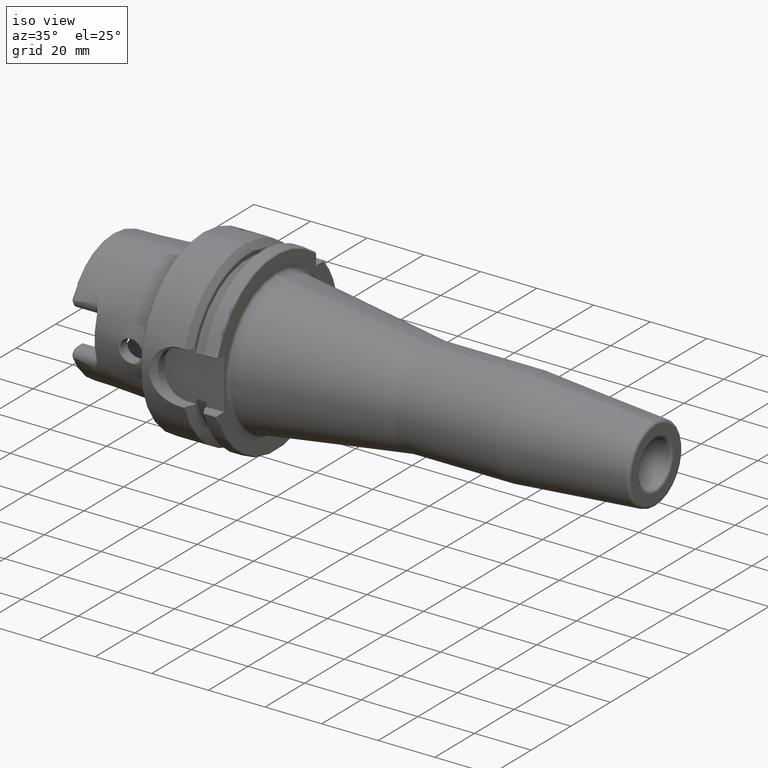
[diagram: clean part render]
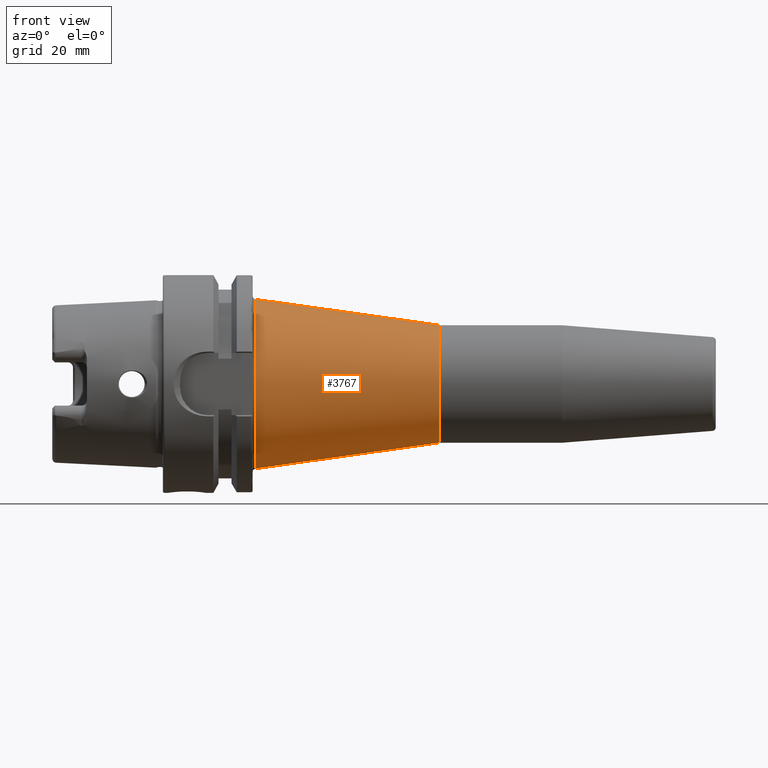
[diagram: tour spotlight — one face highlighted and labeled with its STEP entity id]
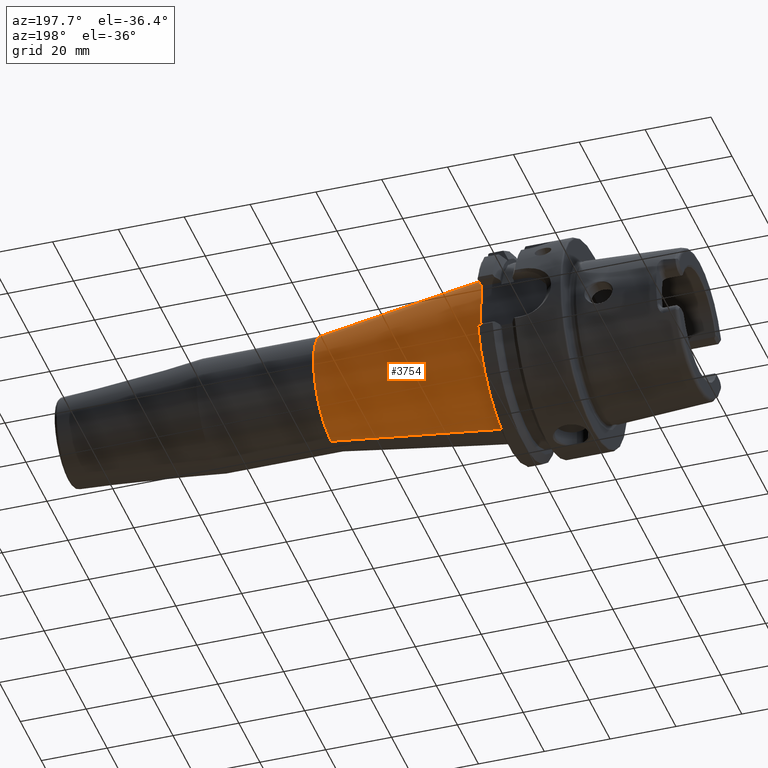
[diagram: tour spotlight — one face highlighted and labeled with its STEP entity id]
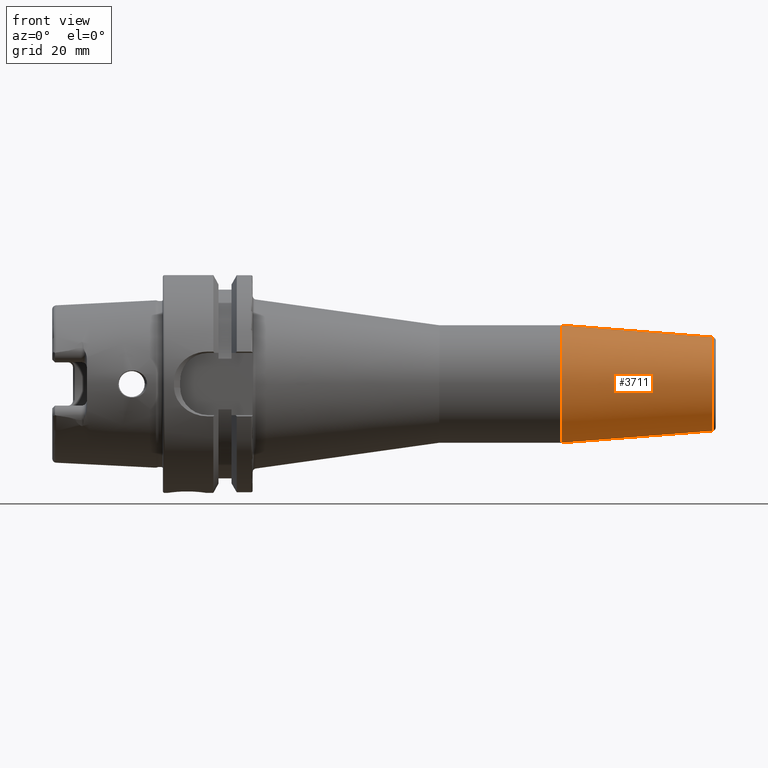
[diagram: tour spotlight — one face highlighted and labeled with its STEP entity id]
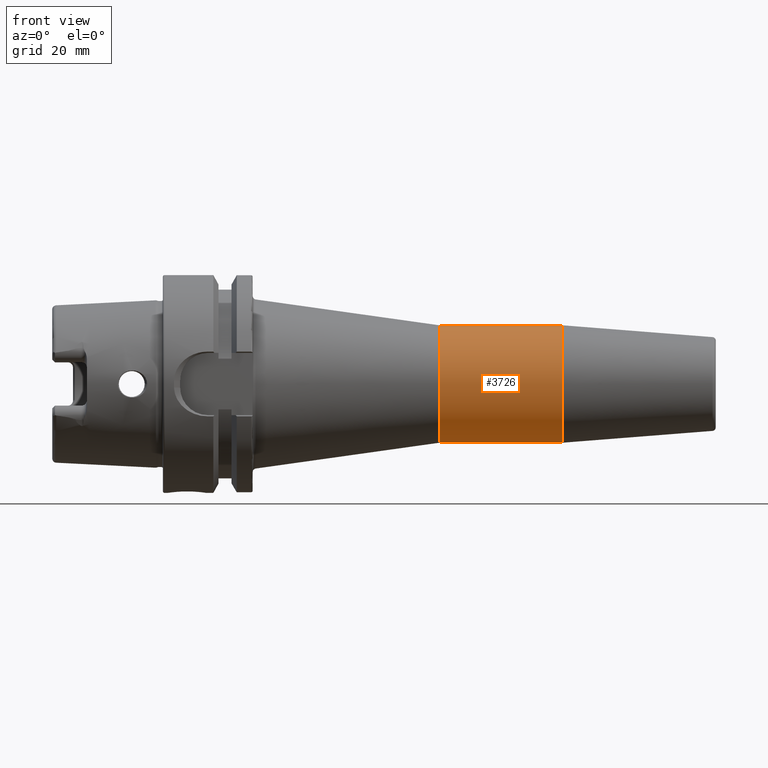
[diagram: tour spotlight — one face highlighted and labeled with its STEP entity id]
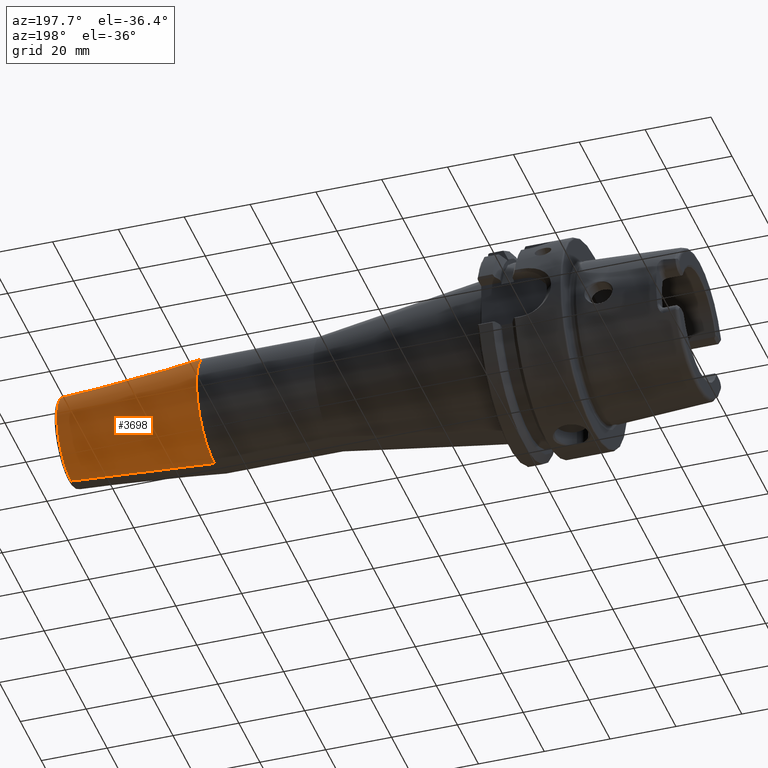
[diagram: tour spotlight — one face highlighted and labeled with its STEP entity id]
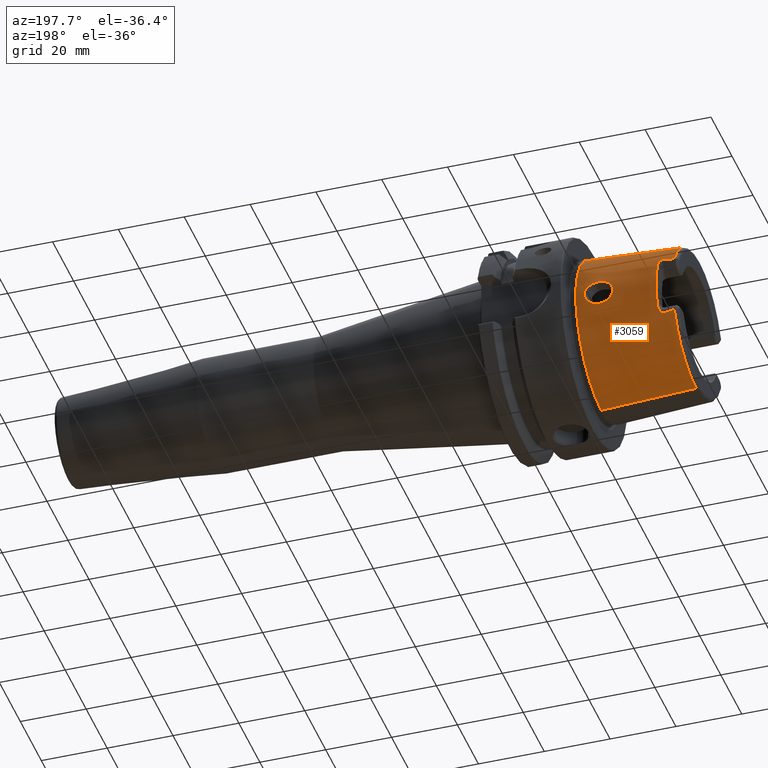
[diagram: tour spotlight — one face highlighted and labeled with its STEP entity id]
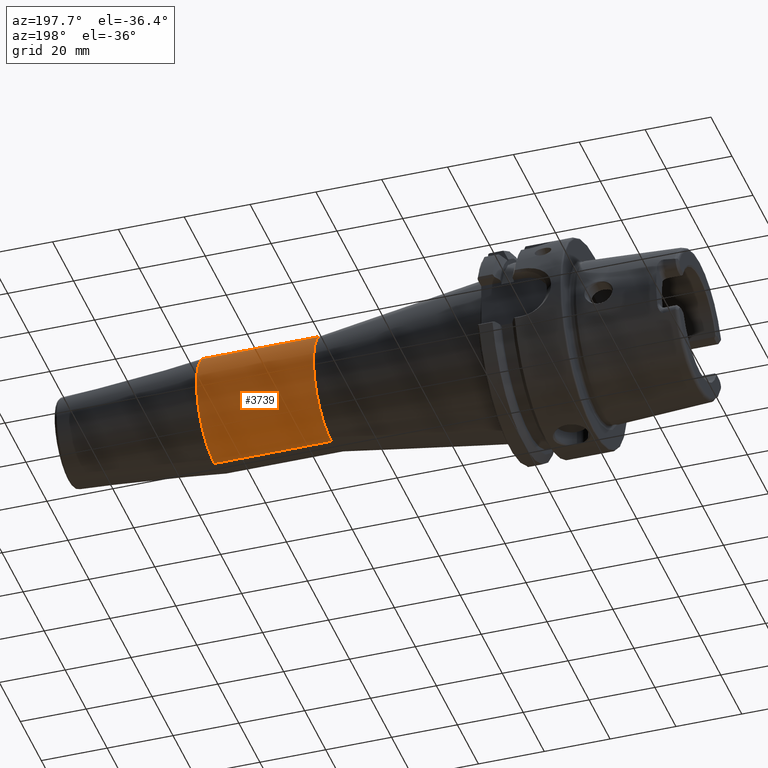
[diagram: tour spotlight — one face highlighted and labeled with its STEP entity id]
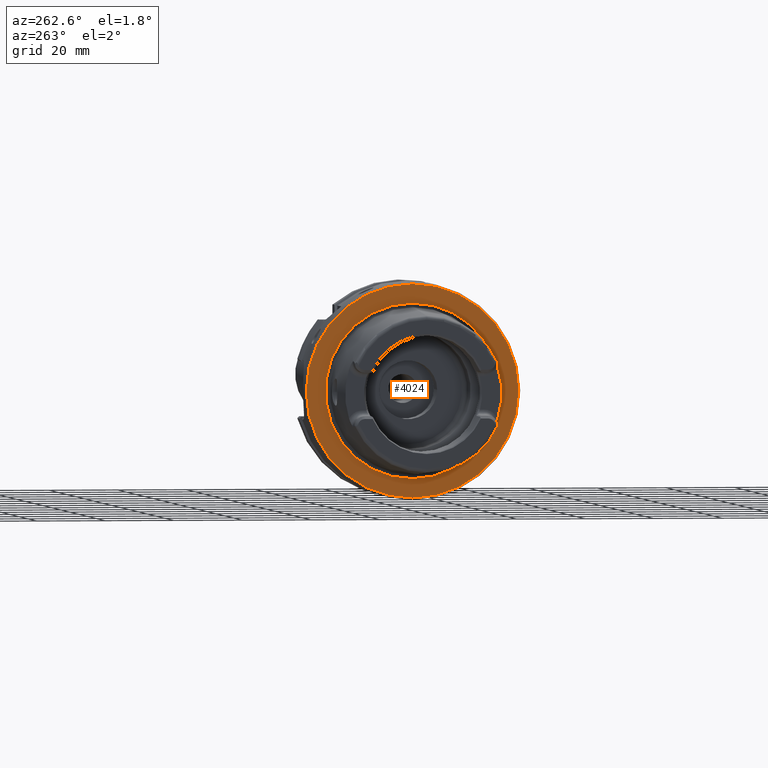
[diagram: tour spotlight — one face highlighted and labeled with its STEP entity id]
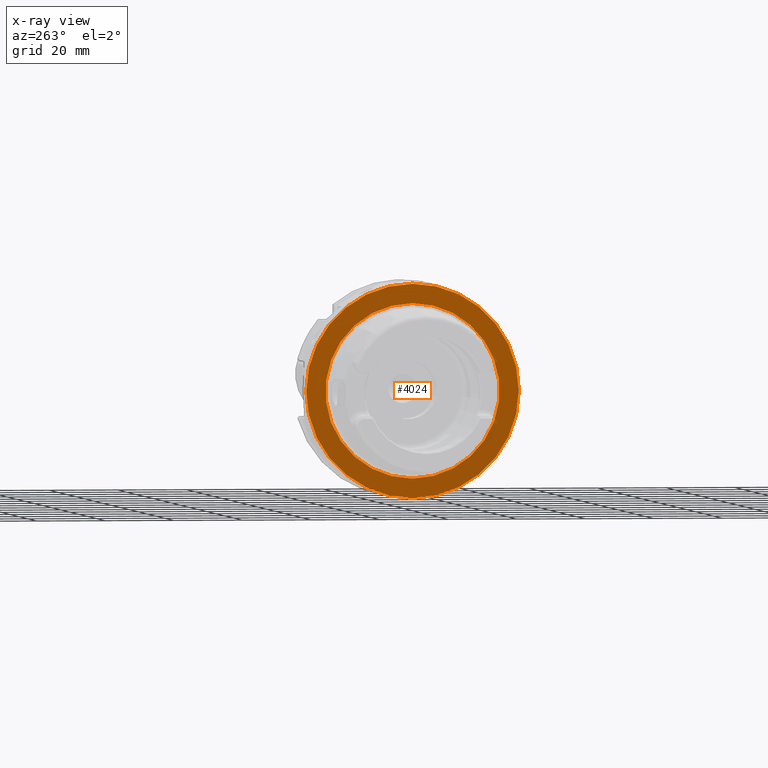
[diagram: x-ray of the same camera — body ghosted, this tour face saturated]
A machine part: a face-by-face anatomy tour. The part has 186 B-rep faces; the first image is the clean iso view, then the 8 largest visible faces are spotlighted one at a time (largest first), each with its STEP entity span.

Face 1 — front view, entity #3767. In plain terms, the highlighted conical surface has half-angle 8 deg.
Definition (entity closure, byte-faithful):
#630=DIRECTION('',(-9.902680687416E-1,0.E0,-1.391731009600E-1));
#631=VECTOR('',#630,5.366140217820E1);
#632=CARTESIAN_POINT('',(8.000000000001E1,0.E0,-1.7E1));
#633=LINE('',#632,#631);
#634=DIRECTION('',(-9.902680687416E-1,0.E0,1.391731009600E-1));
#635=VECTOR('',#634,5.366140217820E1);
#636=CARTESIAN_POINT('',(8.000000000001E1,0.E0,1.7E1));
#637=LINE('',#636,#635);
#638=CARTESIAN_POINT('',(8.000000000001E1,0.E0,0.E0));
#639=DIRECTION('',(-1.E0,0.E0,0.E0));
#640=DIRECTION('',(0.E0,0.E0,-1.E0));
#641=AXIS2_PLACEMENT_3D('',#638,#639,#640);
#648=CARTESIAN_POINT('',(2.686082689904E1,0.E0,0.E0));
#649=DIRECTION('',(-1.E0,0.E0,0.E0));
#650=DIRECTION('',(0.E0,0.E0,-1.E0));
#651=AXIS2_PLACEMENT_3D('',#648,#649,#650);
#2978=CARTESIAN_POINT('',(8.000000000001E1,0.E0,-1.7E1));
#2979=VERTEX_POINT('',#2978);
#2980=CARTESIAN_POINT('',(2.686082689904E1,0.E0,-2.446822374300E1));
#2981=VERTEX_POINT('',#2980);
#3002=CARTESIAN_POINT('',(8.000000000001E1,0.E0,1.7E1));
#3003=VERTEX_POINT('',#3002);
#3004=CARTESIAN_POINT('',(2.686082689904E1,0.E0,2.446822374300E1));
#3005=VERTEX_POINT('',#3004);
#3755=CARTESIAN_POINT('',(5.343041344953E1,0.E0,0.E0));
#3756=DIRECTION('',(-1.E0,0.E0,0.E0));
#3757=DIRECTION('',(0.E0,0.E0,-1.E0));
#3758=AXIS2_PLACEMENT_3D('',#3755,#3756,#3757);
#3759=CONICAL_SURFACE('',#3758,2.073411187150E1,7.999999999998E0);
#3760=ORIENTED_EDGE('',*,*,#3745,.T.);
#3762=ORIENTED_EDGE('',*,*,#3761,.T.);
#3763=ORIENTED_EDGE('',*,*,#3748,.F.);
#3764=ORIENTED_EDGE('',*,*,#3719,.F.);
#3765=EDGE_LOOP('',(#3760,#3762,#3763,#3764));
#3766=FACE_OUTER_BOUND('',#3765,.F.);
#3767=ADVANCED_FACE('',(#3766),#3759,.T.);
#642=CIRCLE('',#641,1.7E1);
#652=CIRCLE('',#651,2.446822374300E1);
#3719=EDGE_CURVE('',#2979,#3003,#642,.T.);
#3745=EDGE_CURVE('',#2979,#2981,#633,.T.);
#3748=EDGE_CURVE('',#3003,#3005,#637,.T.);
#3761=EDGE_CURVE('',#2981,#3005,#652,.T.);

Face 2 — auxiliary view, entity #3754. In plain terms, the highlighted conical surface has half-angle 8 deg.
Definition (entity closure, byte-faithful):
#625=CARTESIAN_POINT('',(8.000000000001E1,0.E0,0.E0));
#626=DIRECTION('',(1.E0,0.E0,0.E0));
#627=DIRECTION('',(0.E0,0.E0,-1.E0));
#628=AXIS2_PLACEMENT_3D('',#625,#626,#627);
#630=DIRECTION('',(-9.902680687416E-1,0.E0,-1.391731009600E-1));
#631=VECTOR('',#630,5.366140217820E1);
#632=CARTESIAN_POINT('',(8.000000000001E1,0.E0,-1.7E1));
#633=LINE('',#632,#631);
#634=DIRECTION('',(-9.902680687416E-1,0.E0,1.391731009600E-1));
#635=VECTOR('',#634,5.366140217820E1);
#636=CARTESIAN_POINT('',(8.000000000001E1,0.E0,1.7E1));
#637=LINE('',#636,#635);
#2501=CARTESIAN_POINT('',(2.686082689904E1,0.E0,0.E0));
#2502=DIRECTION('',(1.E0,0.E0,0.E0));
#2503=DIRECTION('',(0.E0,0.E0,-1.E0));
#2504=AXIS2_PLACEMENT_3D('',#2501,#2502,#2503);
#2978=CARTESIAN_POINT('',(8.000000000001E1,0.E0,-1.7E1));
#2979=VERTEX_POINT('',#2978);
#2980=CARTESIAN_POINT('',(2.686082689904E1,0.E0,-2.446822374300E1));
#2981=VERTEX_POINT('',#2980);
#3002=CARTESIAN_POINT('',(8.000000000001E1,0.E0,1.7E1));
#3003=VERTEX_POINT('',#3002);
#3004=CARTESIAN_POINT('',(2.686082689904E1,0.E0,2.446822374300E1));
#3005=VERTEX_POINT('',#3004);
#3740=CARTESIAN_POINT('',(5.343041344953E1,0.E0,0.E0));
#3741=DIRECTION('',(-1.E0,0.E0,0.E0));
#3742=DIRECTION('',(0.E0,0.E0,-1.E0));
#3743=AXIS2_PLACEMENT_3D('',#3740,#3741,#3742);
#3744=CONICAL_SURFACE('',#3743,2.073411187150E1,7.999999999998E0);
#3746=ORIENTED_EDGE('',*,*,#3745,.F.);
#3747=ORIENTED_EDGE('',*,*,#3735,.T.);
#3749=ORIENTED_EDGE('',*,*,#3748,.T.);
#3751=ORIENTED_EDGE('',*,*,#3750,.F.);
#3752=EDGE_LOOP('',(#3746,#3747,#3749,#3751));
#3753=FACE_OUTER_BOUND('',#3752,.F.);
#3754=ADVANCED_FACE('',(#3753),#3744,.T.);
#629=CIRCLE('',#628,1.7E1);
#2505=CIRCLE('',#2504,2.446822374300E1);
#3735=EDGE_CURVE('',#2979,#3003,#629,.T.);
#3745=EDGE_CURVE('',#2979,#2981,#633,.T.);
#3748=EDGE_CURVE('',#3003,#3005,#637,.T.);
#3750=EDGE_CURVE('',#2981,#3005,#2505,.T.);

Face 3 — front view, entity #3711. In plain terms, the highlighted conical surface has half-angle 4.5 deg.
Definition (entity closure, byte-faithful):
#594=DIRECTION('',(-9.969173337331E-1,0.E0,-7.845909572785E-2));
#595=VECTOR('',#594,4.368484145948E1);
#596=CARTESIAN_POINT('',(1.590784590957E2,0.E0,-1.357252684208E1));
#597=LINE('',#596,#595);
#598=DIRECTION('',(-9.969173337331E-1,0.E0,7.845909572785E-2));
#599=VECTOR('',#598,4.368484145948E1);
#600=CARTESIAN_POINT('',(1.590784590957E2,0.E0,1.357252684208E1));
#601=LINE('',#600,#599);
#602=CARTESIAN_POINT('',(1.590784590957E2,0.E0,0.E0));
#603=DIRECTION('',(-1.E0,0.E0,0.E0));
#604=DIRECTION('',(0.E0,0.E0,-1.E0));
#605=AXIS2_PLACEMENT_3D('',#602,#603,#604);
#615=CARTESIAN_POINT('',(1.155282834234E2,0.E0,0.E0));
#616=DIRECTION('',(-1.E0,0.E0,0.E0));
#617=DIRECTION('',(0.E0,0.E0,-1.E0));
#618=AXIS2_PLACEMENT_3D('',#615,#616,#617);
#2973=CARTESIAN_POINT('',(1.590784590957E2,0.E0,-1.357252684208E1));
#2975=VERTEX_POINT('',#2973);
#2976=CARTESIAN_POINT('',(1.155282834234E2,0.E0,-1.7E1));
#2977=VERTEX_POINT('',#2976);
#2997=CARTESIAN_POINT('',(1.590784590957E2,0.E0,1.357252684208E1));
#2999=VERTEX_POINT('',#2997);
#3000=CARTESIAN_POINT('',(1.155282834234E2,0.E0,1.7E1));
#3001=VERTEX_POINT('',#3000);
#3699=CARTESIAN_POINT('',(1.373033712596E2,0.E0,0.E0));
#3700=DIRECTION('',(-1.E0,0.E0,0.E0));
#3701=DIRECTION('',(0.E0,0.E0,-1.E0));
#3702=AXIS2_PLACEMENT_3D('',#3699,#3700,#3701);
#3703=CONICAL_SURFACE('',#3702,1.528626342104E1,4.5E0);
#3704=ORIENTED_EDGE('',*,*,#3689,.T.);
#3706=ORIENTED_EDGE('',*,*,#3705,.T.);
#3707=ORIENTED_EDGE('',*,*,#3692,.F.);
#3708=ORIENTED_EDGE('',*,*,#3663,.F.);
#3709=EDGE_LOOP('',(#3704,#3706,#3707,#3708));
#3710=FACE_OUTER_BOUND('',#3709,.F.);
#3711=ADVANCED_FACE('',(#3710),#3703,.T.);
#606=CIRCLE('',#605,1.357252684208E1);
#619=CIRCLE('',#618,1.7E1);
#3663=EDGE_CURVE('',#2975,#2999,#606,.T.);
#3689=EDGE_CURVE('',#2975,#2977,#597,.T.);
#3692=EDGE_CURVE('',#2999,#3001,#601,.T.);
#3705=EDGE_CURVE('',#2977,#3001,#619,.T.);

Face 4 — front view, entity #3726. In plain terms, the highlighted cylindrical surface (partial cylindrical patch) has radius 17 mm, axis along (1, 0, 0).
Definition (entity closure, byte-faithful):
#607=DIRECTION('',(-1.E0,0.E0,0.E0));
#608=VECTOR('',#607,3.552828342339E1);
#609=CARTESIAN_POINT('',(1.155282834234E2,0.E0,-1.7E1));
#610=LINE('',#609,#608);
#611=DIRECTION('',(-1.E0,0.E0,0.E0));
#612=VECTOR('',#611,3.552828342339E1);
#613=CARTESIAN_POINT('',(1.155282834234E2,0.E0,1.7E1));
#614=LINE('',#613,#612);
#615=CARTESIAN_POINT('',(1.155282834234E2,0.E0,0.E0));
#616=DIRECTION('',(-1.E0,0.E0,0.E0));
#617=DIRECTION('',(0.E0,0.E0,-1.E0));
#618=AXIS2_PLACEMENT_3D('',#615,#616,#617);
#638=CARTESIAN_POINT('',(8.000000000001E1,0.E0,0.E0));
#639=DIRECTION('',(-1.E0,0.E0,0.E0));
#640=DIRECTION('',(0.E0,0.E0,-1.E0));
#641=AXIS2_PLACEMENT_3D('',#638,#639,#640);
#2976=CARTESIAN_POINT('',(1.155282834234E2,0.E0,-1.7E1));
#2977=VERTEX_POINT('',#2976);
#2978=CARTESIAN_POINT('',(8.000000000001E1,0.E0,-1.7E1));
#2979=VERTEX_POINT('',#2978);
#3000=CARTESIAN_POINT('',(1.155282834234E2,0.E0,1.7E1));
#3001=VERTEX_POINT('',#3000);
#3002=CARTESIAN_POINT('',(8.000000000001E1,0.E0,1.7E1));
#3003=VERTEX_POINT('',#3002);
#3712=CARTESIAN_POINT('',(1.93E1,0.E0,0.E0));
#3713=DIRECTION('',(1.E0,0.E0,0.E0));
#3714=DIRECTION('',(0.E0,0.E0,1.E0));
#3715=AXIS2_PLACEMENT_3D('',#3712,#3713,#3714);
#3716=CYLINDRICAL_SURFACE('',#3715,1.7E1);
#3718=ORIENTED_EDGE('',*,*,#3717,.T.);
#3720=ORIENTED_EDGE('',*,*,#3719,.T.);
#3722=ORIENTED_EDGE('',*,*,#3721,.F.);
#3723=ORIENTED_EDGE('',*,*,#3705,.F.);
#3724=EDGE_LOOP('',(#3718,#3720,#3722,#3723));
#3725=FACE_OUTER_BOUND('',#3724,.F.);
#3726=ADVANCED_FACE('',(#3725),#3716,.T.);
#619=CIRCLE('',#618,1.7E1);
#642=CIRCLE('',#641,1.7E1);
#3705=EDGE_CURVE('',#2977,#3001,#619,.T.);
#3717=EDGE_CURVE('',#2977,#2979,#610,.T.);
#3719=EDGE_CURVE('',#2979,#3003,#642,.T.);
#3721=EDGE_CURVE('',#3001,#3003,#614,.T.);

Face 5 — auxiliary view, entity #3698. In plain terms, the highlighted conical surface has half-angle 4.5 deg.
Definition (entity closure, byte-faithful):
#589=CARTESIAN_POINT('',(1.590784590957E2,0.E0,0.E0));
#590=DIRECTION('',(1.E0,0.E0,0.E0));
#591=DIRECTION('',(0.E0,0.E0,-1.E0));
#592=AXIS2_PLACEMENT_3D('',#589,#590,#591);
#594=DIRECTION('',(-9.969173337331E-1,0.E0,-7.845909572785E-2));
#595=VECTOR('',#594,4.368484145948E1);
#596=CARTESIAN_POINT('',(1.590784590957E2,0.E0,-1.357252684208E1));
#597=LINE('',#596,#595);
#598=DIRECTION('',(-9.969173337331E-1,0.E0,7.845909572785E-2));
#599=VECTOR('',#598,4.368484145948E1);
#600=CARTESIAN_POINT('',(1.590784590957E2,0.E0,1.357252684208E1));
#601=LINE('',#600,#599);
#620=CARTESIAN_POINT('',(1.155282834234E2,0.E0,0.E0));
#621=DIRECTION('',(1.E0,0.E0,0.E0));
#622=DIRECTION('',(0.E0,0.E0,-1.E0));
#623=AXIS2_PLACEMENT_3D('',#620,#621,#622);
#2973=CARTESIAN_POINT('',(1.590784590957E2,0.E0,-1.357252684208E1));
#2975=VERTEX_POINT('',#2973);
#2976=CARTESIAN_POINT('',(1.155282834234E2,0.E0,-1.7E1));
#2977=VERTEX_POINT('',#2976);
#2997=CARTESIAN_POINT('',(1.590784590957E2,0.E0,1.357252684208E1));
#2999=VERTEX_POINT('',#2997);
#3000=CARTESIAN_POINT('',(1.155282834234E2,0.E0,1.7E1));
#3001=VERTEX_POINT('',#3000);
#3684=CARTESIAN_POINT('',(1.373033712596E2,0.E0,0.E0));
#3685=DIRECTION('',(-1.E0,0.E0,0.E0));
#3686=DIRECTION('',(0.E0,0.E0,-1.E0));
#3687=AXIS2_PLACEMENT_3D('',#3684,#3685,#3686);
#3688=CONICAL_SURFACE('',#3687,1.528626342104E1,4.5E0);
#3690=ORIENTED_EDGE('',*,*,#3689,.F.);
#3691=ORIENTED_EDGE('',*,*,#3679,.T.);
#3693=ORIENTED_EDGE('',*,*,#3692,.T.);
#3695=ORIENTED_EDGE('',*,*,#3694,.F.);
#3696=EDGE_LOOP('',(#3690,#3691,#3693,#3695));
#3697=FACE_OUTER_BOUND('',#3696,.F.);
#3698=ADVANCED_FACE('',(#3697),#3688,.T.);
#593=CIRCLE('',#592,1.357252684208E1);
#624=CIRCLE('',#623,1.7E1);
#3679=EDGE_CURVE('',#2975,#2999,#593,.T.);
#3689=EDGE_CURVE('',#2975,#2977,#597,.T.);
#3692=EDGE_CURVE('',#2999,#3001,#601,.T.);
#3694=EDGE_CURVE('',#2977,#3001,#624,.T.);

Face 6 — auxiliary view, entity #3059. In plain terms, the highlighted conical surface has half-angle 2.868 deg.
Definition (entity closure, byte-faithful):
#2=CARTESIAN_POINT('',(-3.086004333271E1,0.E0,0.E0));
#3=DIRECTION('',(-1.E0,0.E0,0.E0));
#4=DIRECTION('',(0.E0,9.163649919573E-1,-4.003438540993E-1));
#5=AXIS2_PLACEMENT_3D('',#2,#3,#4);
#7=CARTESIAN_POINT('',(-2.000078966146E0,0.E0,0.E0));
#8=DIRECTION('',(-1.E0,0.E0,0.E0));
#9=DIRECTION('',(0.E0,0.E0,1.E0));
#10=AXIS2_PLACEMENT_3D('',#7,#8,#9);
#12=CARTESIAN_POINT('',(-3.086004333271E1,0.E0,0.E0));
#13=DIRECTION('',(-1.E0,0.E0,0.E0));
#14=DIRECTION('',(0.E0,0.E0,1.E0));
#15=AXIS2_PLACEMENT_3D('',#12,#13,#14);
#17=CARTESIAN_POINT('',(-3.086004333271E1,2.086981840766E1,9.117659021249E0));
#18=CARTESIAN_POINT('',(-3.053477016229E1,2.087026407252E1,9.157343468693E0));
#19=CARTESIAN_POINT('',(-2.990731725920E1,2.086951854295E1,9.237138009720E0));
#20=CARTESIAN_POINT('',(-2.903749175968E1,2.086333964170E1,9.358087934639E0));
#21=CARTESIAN_POINT('',(-2.823306039663E1,2.085177035668E1,9.481640423811E0));
#22=CARTESIAN_POINT('',(-2.773735868303E1,2.083999307163E1,9.567019157167E0));
#23=CARTESIAN_POINT('',(-2.75E1,2.083289994314E1,9.610781850025E0));
#25=CARTESIAN_POINT('',(-3.086004333271E1,2.086981840766E1,-9.117659021249E0));
#26=CARTESIAN_POINT('',(-3.053477016229E1,2.087026407252E1,-9.157343468693E0));
#27=CARTESIAN_POINT('',(-2.990731725920E1,2.086951854295E1,-9.237138009720E0));
#28=CARTESIAN_POINT('',(-2.903749175968E1,2.086333964170E1,-9.358087934639E0));
#29=CARTESIAN_POINT('',(-2.823306039663E1,2.085177035668E1,-9.481640423811E0));
#30=CARTESIAN_POINT('',(-2.773735868303E1,2.083999307163E1,-9.567019157167E0));
#31=CARTESIAN_POINT('',(-2.75E1,2.083289994314E1,-9.610781850025E0));
#33=CARTESIAN_POINT('',(-1.304439190524E1,2.366711362744E1,0.E0));
#34=CARTESIAN_POINT('',(-1.304439190524E1,2.366711362744E1,-2.692296203512E-1));
#35=CARTESIAN_POINT('',(-1.298596588633E1,2.366095548437E1,-7.915478808268E-1));
#36=CARTESIAN_POINT('',(-1.273593529021E1,2.363615494345E1,-1.538491121410E0));
#37=CARTESIAN_POINT('',(-1.234085581199E1,2.360161826823E1,-2.213541098239E0));
#38=CARTESIAN_POINT('',(-1.181419542757E1,2.356442533815E1,-2.805250832800E0));
#39=CARTESIAN_POINT('',(-1.117137997799E1,2.353291472613E1,-3.293080560877E0));
#40=CARTESIAN_POINT('',(-1.044411763446E1,2.351584278645E1,-3.653416998785E0));
#41=CARTESIAN_POINT('',(-9.665961713705E0,2.351947741575E1,-3.874611692795E0));
#42=CARTESIAN_POINT('',(-8.868249773196E0,2.354653765362E1,-3.954597009881E0));
#43=CARTESIAN_POINT('',(-8.066538054402E0,2.359739017255E1,-3.894486132971E0));
#44=CARTESIAN_POINT('',(-7.282895667530E0,2.366966238930E1,-3.694792672991E0));
#45=CARTESIAN_POINT('',(-6.526798753436E0,2.376050761714E1,-3.345491144455E0));
#46=CARTESIAN_POINT('',(-5.863814319433E0,2.385701628222E1,-2.868853306938E0));
#47=CARTESIAN_POINT('',(-5.312865344565E0,2.394874241525E1,-2.282242940895E0));
#48=CARTESIAN_POINT('',(-4.894562356430E0,2.402528280422E1,-1.608353345469E0));
#49=CARTESIAN_POINT('',(-4.618382192889E0,2.407904412959E1,-8.401112834544E-1));
#50=CARTESIAN_POINT('',(-4.550876813471E0,2.409262908457E1,-2.877835390342E-1));
#51=CARTESIAN_POINT('',(-4.550876813471E0,2.409262908457E1,0.E0));
#53=CARTESIAN_POINT('',(-4.550876813471E0,2.409262908457E1,0.E0));
#54=CARTESIAN_POINT('',(-4.550876813471E0,2.409262908457E1,2.859611557422E-1));
#55=CARTESIAN_POINT('',(-4.617596309412E0,2.407920413971E1,8.352613928778E-1));
#56=CARTESIAN_POINT('',(-4.890694973026E0,2.402602347294E1,1.599880277375E0));
#57=CARTESIAN_POINT('',(-5.306466792903E0,2.394987071124E1,2.273906799261E0));
#58=CARTESIAN_POINT('',(-5.856510230644E0,2.385815053501E1,2.862665496108E0));
#59=CARTESIAN_POINT('',(-6.521241332787E0,2.376122989035E1,3.342466827978E0));
#60=CARTESIAN_POINT('',(-7.278646414857E0,2.367010677752E1,3.693348295885E0));
#61=CARTESIAN_POINT('',(-8.062694821519E0,2.359768581097E1,3.893886174943E0));
#62=CARTESIAN_POINT('',(-8.864889034770E0,2.354669857096E1,3.954654604967E0));
#63=CARTESIAN_POINT('',(-9.662752662742E0,2.351953711749E1,3.875232791745E0));
#64=CARTESIAN_POINT('',(-1.044126794827E1,2.351581579089E1,3.654504198045E0));
#65=CARTESIAN_POINT('',(-1.116829063931E1,2.353280579750E1,3.294940241881E0));
#66=CARTESIAN_POINT('',(-1.181105545196E1,2.356423840462E1,2.808070161338E0));
#67=CARTESIAN_POINT('',(-1.233792159236E1,2.360138355943E1,2.217544614980E0));
#68=CARTESIAN_POINT('',(-1.273424784845E1,2.363599247778E1,1.542402709130E0));
#69=CARTESIAN_POINT('',(-1.298554429292E1,2.366091077517E1,7.941137450600E-1));
#70=CARTESIAN_POINT('',(-1.304439190524E1,2.366711362744E1,2.702086010916E-1));
#71=CARTESIAN_POINT('',(-1.304439190524E1,2.366711362744E1,0.E0));
#144=CARTESIAN_POINT('',(-2.75E1,2.083289994314E1,-9.610781850025E0));
#145=CARTESIAN_POINT('',(-2.743975062531E1,2.083109947580E1,-9.621890248698E0));
#146=CARTESIAN_POINT('',(-2.731974848713E1,2.083872619074E1,-9.619737940193E0));
#147=CARTESIAN_POINT('',(-2.713788283439E1,2.088499706769E1,-9.541042090458E0));
#148=CARTESIAN_POINT('',(-2.696734572208E1,2.095414112914E1,-9.409321527965E0));
#149=CARTESIAN_POINT('',(-2.680749153758E1,2.103583876480E1,-9.245355378728E0));
#150=CARTESIAN_POINT('',(-2.665257735252E1,2.112843537783E1,-9.051716021862E0));
#151=CARTESIAN_POINT('',(-2.650302698832E1,2.123047210424E1,-8.829512386182E0));
#152=CARTESIAN_POINT('',(-2.636248241751E1,2.133984318010E1,-8.581008391494E0));
#153=CARTESIAN_POINT('',(-2.623108108915E1,2.145913591165E1,-8.296954135832E0));
#154=CARTESIAN_POINT('',(-2.611489180659E1,2.158976731555E1,-7.968405102356E0));
#155=CARTESIAN_POINT('',(-2.602652288189E1,2.173158022596E1,-7.587530024420E0));
#156=CARTESIAN_POINT('',(-2.6E1,2.183164499938E1,-7.296342131266E0));
#157=CARTESIAN_POINT('',(-2.6E1,2.188224159781E1,-7.141305064401E0));
#173=CARTESIAN_POINT('',(-2.6E1,0.E0,0.E0));
#174=DIRECTION('',(1.E0,0.E0,0.E0));
#175=DIRECTION('',(0.E0,9.506556522061E-1,-3.102480151887E-1));
#176=AXIS2_PLACEMENT_3D('',#173,#174,#175);
#1177=DIRECTION('',(-9.987474310439E-1,-1.043943059125E-10,-5.003567710383E-2));
#1178=VECTOR('',#1177,2.889623723507E1);
#1179=CARTESIAN_POINT('',(-2.000000627352E0,3.013169918385E-9,
2.422041252602E1));
#1180=LINE('',#1179,#1178);
#1186=DIRECTION('',(-9.987474310439E-1,1.043954859780E-10,5.003567710383E-2));
#1187=VECTOR('',#1186,2.889623723507E1);
#1188=CARTESIAN_POINT('',(-2.000000627352E0,-3.013171862045E-9,
-2.422041252602E1));
#1189=LINE('',#1188,#1187);
#1345=CARTESIAN_POINT('',(-2.6E1,2.188224159781E1,7.141305064400E0));
#1346=CARTESIAN_POINT('',(-2.6E1,2.183974716074E1,7.271515653360E0));
#1347=CARTESIAN_POINT('',(-2.601871282871E1,2.175468164903E1,7.521324142367E0));
#1348=CARTESIAN_POINT('',(-2.608831272694E1,2.162788937119E1,7.867819964950E0));
#1349=CARTESIAN_POINT('',(-2.618560132166E1,2.150728532315E1,8.177555427085E0));
#1350=CARTESIAN_POINT('',(-2.630091098865E1,2.139363544444E1,8.454351951900E0));
#1351=CARTESIAN_POINT('',(-2.642777532615E1,2.128749113051E1,8.701079139516E0));
#1352=CARTESIAN_POINT('',(-2.656205230822E1,2.118893349758E1,8.920855574258E0));
#1353=CARTESIAN_POINT('',(-2.670233126283E1,2.109762227452E1,9.116811046229E0));
#1354=CARTESIAN_POINT('',(-2.684756686438E1,2.101419232942E1,9.289367907590E0));
#1355=CARTESIAN_POINT('',(-2.700261207520E1,2.093857757737E1,9.439508455813E0));
#1356=CARTESIAN_POINT('',(-2.716024259459E1,2.087834082786E1,9.552833408787E0));
#1357=CARTESIAN_POINT('',(-2.733041362146E1,2.083774391445E1,9.620584457154E0));
#1358=CARTESIAN_POINT('',(-2.744319606554E1,2.083120243791E1,9.621255000217E0));
#1359=CARTESIAN_POINT('',(-2.75E1,2.083289994314E1,9.610781850025E0));
#2599=CARTESIAN_POINT('',(-2.000078966146E0,0.E0,-2.422042115892E1));
#2600=CARTESIAN_POINT('',(-2.000078966146E0,0.E0,2.422042115892E1));
#2601=VERTEX_POINT('',#2599);
#2602=VERTEX_POINT('',#2600);
#2744=CARTESIAN_POINT('',(-2.6E1,2.188224159781E1,-7.141305064400E0));
#2746=VERTEX_POINT('',#2744);
#2748=CARTESIAN_POINT('',(-2.75E1,2.083289994314E1,-9.610781850025E0));
#2750=VERTEX_POINT('',#2748);
#2752=CARTESIAN_POINT('',(-2.75E1,2.083289994314E1,9.610781850025E0));
#2754=VERTEX_POINT('',#2752);
#2756=CARTESIAN_POINT('',(-2.6E1,2.188224159781E1,7.141305064400E0));
#2758=VERTEX_POINT('',#2756);
#2774=CARTESIAN_POINT('',(-3.086004333271E1,0.E0,-2.277456973022E1));
#2776=VERTEX_POINT('',#2774);
#2778=CARTESIAN_POINT('',(-3.086004333271E1,2.086981840766E1,
-9.117659021249E0));
#2779=VERTEX_POINT('',#2778);
#2780=CARTESIAN_POINT('',(-3.086004333271E1,0.E0,2.277456973022E1));
#2781=CARTESIAN_POINT('',(-3.086004333271E1,2.086981840766E1,9.117659021249E0));
#2782=VERTEX_POINT('',#2780);
#2783=VERTEX_POINT('',#2781);
#2862=VERTEX_POINT('',#33);
#2863=VERTEX_POINT('',#51);
#3026=CARTESIAN_POINT('',(-1.643002229390E1,0.E0,0.E0));
#3027=DIRECTION('',(1.E0,0.E0,0.E0));
#3028=DIRECTION('',(0.E0,0.E0,1.E0));
#3029=AXIS2_PLACEMENT_3D('',#3026,#3027,#3028);
#3030=CONICAL_SURFACE('',#3029,2.349749739118E1,2.86805556E0);
#3032=ORIENTED_EDGE('',*,*,#3031,.T.);
#3034=ORIENTED_EDGE('',*,*,#3033,.F.);
#3036=ORIENTED_EDGE('',*,*,#3035,.F.);
#3038=ORIENTED_EDGE('',*,*,#3037,.T.);
#3040=ORIENTED_EDGE('',*,*,#3039,.T.);
#3042=ORIENTED_EDGE('',*,*,#3041,.T.);
#3044=ORIENTED_EDGE('',*,*,#3043,.F.);
#3046=ORIENTED_EDGE('',*,*,#3045,.F.);
#3048=ORIENTED_EDGE('',*,*,#3047,.F.);
#3050=ORIENTED_EDGE('',*,*,#3049,.F.);
#3051=EDGE_LOOP('',(#3032,#3034,#3036,#3038,#3040,#3042,#3044,#3046,#3048,
#3050));
#3052=FACE_OUTER_BOUND('',#3051,.F.);
#3054=ORIENTED_EDGE('',*,*,#3053,.F.);
#3056=ORIENTED_EDGE('',*,*,#3055,.F.);
#3057=EDGE_LOOP('',(#3054,#3056));
#3058=FACE_BOUND('',#3057,.F.);
#3059=ADVANCED_FACE('',(#3052,#3058),#3030,.T.);
#6=CIRCLE('',#5,2.277456973022E1);
#11=CIRCLE('',#10,2.422042115892E1);
#16=CIRCLE('',#15,2.277456973022E1);
#24=B_SPLINE_CURVE_WITH_KNOTS('',3,(#17,#18,#19,#20,#21,#22,#23),.UNSPECIFIED.,
.F.,.F.,(4,1,1,1,4),(0.E0,2.5E-1,5.E-1,7.5E-1,1.E0),.UNSPECIFIED.);
#32=B_SPLINE_CURVE_WITH_KNOTS('',3,(#25,#26,#27,#28,#29,#30,#31),.UNSPECIFIED.,
.F.,.F.,(4,1,1,1,4),(0.E0,2.5E-1,5.E-1,7.5E-1,1.E0),.UNSPECIFIED.);
#52=B_SPLINE_CURVE_WITH_KNOTS('',3,(#33,#34,#35,#36,#37,#38,#39,#40,#41,#42,#43,
#44,#45,#46,#47,#48,#49,#50,#51),.UNSPECIFIED.,.F.,.F.,(4,1,1,1,1,1,1,1,1,1,1,1,
1,1,1,1,4),(0.E0,6.25E-2,1.25E-1,1.875E-1,2.5E-1,3.125E-1,3.75E-1,4.375E-1,
5.E-1,5.625E-1,6.25E-1,6.875E-1,7.5E-1,8.125E-1,8.75E-1,9.375E-1,1.E0),
.UNSPECIFIED.);
#72=B_SPLINE_CURVE_WITH_KNOTS('',3,(#53,#54,#55,#56,#57,#58,#59,#60,#61,#62,#63,
#64,#65,#66,#67,#68,#69,#70,#71),.UNSPECIFIED.,.F.,.F.,(4,1,1,1,1,1,1,1,1,1,1,1,
1,1,1,1,4),(0.E0,6.25E-2,1.25E-1,1.875E-1,2.5E-1,3.125E-1,3.75E-1,4.375E-1,
5.E-1,5.625E-1,6.25E-1,6.875E-1,7.5E-1,8.125E-1,8.75E-1,9.375E-1,1.E0),
.UNSPECIFIED.);
#158=B_SPLINE_CURVE_WITH_KNOTS('',3,(#144,#145,#146,#147,#148,#149,#150,#151,
#152,#153,#154,#155,#156,#157),.UNSPECIFIED.,.F.,.F.,(4,1,1,1,1,1,1,1,1,1,1,4),(
0.E0,9.090909090909E-2,1.818181818182E-1,2.727272727273E-1,3.636363636364E-1,
4.545454545455E-1,5.454545454545E-1,6.363636363636E-1,7.272727272727E-1,
8.181818181818E-1,9.090909090909E-1,1.E0),.UNSPECIFIED.);
#177=CIRCLE('',#176,2.301805237998E1);
#1360=B_SPLINE_CURVE_WITH_KNOTS('',3,(#1345,#1346,#1347,#1348,#1349,#1350,#1351,
#1352,#1353,#1354,#1355,#1356,#1357,#1358,#1359),.UNSPECIFIED.,.F.,.F.,(4,1,1,1,
1,1,1,1,1,1,1,1,4),(0.E0,8.333333333333E-2,1.666666666667E-1,2.5E-1,
3.333333333333E-1,4.166666666667E-1,5.E-1,5.833333333333E-1,6.666666666667E-1,
7.5E-1,8.333333333333E-1,9.166666666667E-1,1.E0),.UNSPECIFIED.);
#3031=EDGE_CURVE('',#2779,#2776,#6,.T.);
#3033=EDGE_CURVE('',#2601,#2776,#1189,.T.);
#3035=EDGE_CURVE('',#2602,#2601,#11,.T.);
#3037=EDGE_CURVE('',#2602,#2782,#1180,.T.);
#3039=EDGE_CURVE('',#2782,#2783,#16,.T.);
#3041=EDGE_CURVE('',#2783,#2754,#24,.T.);
#3043=EDGE_CURVE('',#2758,#2754,#1360,.T.);
#3045=EDGE_CURVE('',#2746,#2758,#177,.T.);
#3047=EDGE_CURVE('',#2750,#2746,#158,.T.);
#3049=EDGE_CURVE('',#2779,#2750,#32,.T.);
#3053=EDGE_CURVE('',#2862,#2863,#52,.T.);
#3055=EDGE_CURVE('',#2863,#2862,#72,.T.);

Face 7 — auxiliary view, entity #3739. In plain terms, the highlighted cylindrical surface (partial cylindrical patch) has radius 17 mm, axis along (1, 0, 0).
Definition (entity closure, byte-faithful):
#607=DIRECTION('',(-1.E0,0.E0,0.E0));
#608=VECTOR('',#607,3.552828342339E1);
#609=CARTESIAN_POINT('',(1.155282834234E2,0.E0,-1.7E1));
#610=LINE('',#609,#608);
#611=DIRECTION('',(-1.E0,0.E0,0.E0));
#612=VECTOR('',#611,3.552828342339E1);
#613=CARTESIAN_POINT('',(1.155282834234E2,0.E0,1.7E1));
#614=LINE('',#613,#612);
#620=CARTESIAN_POINT('',(1.155282834234E2,0.E0,0.E0));
#621=DIRECTION('',(1.E0,0.E0,0.E0));
#622=DIRECTION('',(0.E0,0.E0,-1.E0));
#623=AXIS2_PLACEMENT_3D('',#620,#621,#622);
#625=CARTESIAN_POINT('',(8.000000000001E1,0.E0,0.E0));
#626=DIRECTION('',(1.E0,0.E0,0.E0));
#627=DIRECTION('',(0.E0,0.E0,-1.E0));
#628=AXIS2_PLACEMENT_3D('',#625,#626,#627);
#2976=CARTESIAN_POINT('',(1.155282834234E2,0.E0,-1.7E1));
#2977=VERTEX_POINT('',#2976);
#2978=CARTESIAN_POINT('',(8.000000000001E1,0.E0,-1.7E1));
#2979=VERTEX_POINT('',#2978);
#3000=CARTESIAN_POINT('',(1.155282834234E2,0.E0,1.7E1));
#3001=VERTEX_POINT('',#3000);
#3002=CARTESIAN_POINT('',(8.000000000001E1,0.E0,1.7E1));
#3003=VERTEX_POINT('',#3002);
#3727=CARTESIAN_POINT('',(1.93E1,0.E0,0.E0));
#3728=DIRECTION('',(1.E0,0.E0,0.E0));
#3729=DIRECTION('',(0.E0,0.E0,1.E0));
#3730=AXIS2_PLACEMENT_3D('',#3727,#3728,#3729);
#3731=CYLINDRICAL_SURFACE('',#3730,1.7E1);
#3732=ORIENTED_EDGE('',*,*,#3717,.F.);
#3733=ORIENTED_EDGE('',*,*,#3694,.T.);
#3734=ORIENTED_EDGE('',*,*,#3721,.T.);
#3736=ORIENTED_EDGE('',*,*,#3735,.F.);
#3737=EDGE_LOOP('',(#3732,#3733,#3734,#3736));
#3738=FACE_OUTER_BOUND('',#3737,.F.);
#3739=ADVANCED_FACE('',(#3738),#3731,.T.);
#624=CIRCLE('',#623,1.7E1);
#629=CIRCLE('',#628,1.7E1);
#3694=EDGE_CURVE('',#2977,#3001,#624,.T.);
#3717=EDGE_CURVE('',#2977,#2979,#610,.T.);
#3721=EDGE_CURVE('',#3001,#3003,#614,.T.);
#3735=EDGE_CURVE('',#2979,#3003,#629,.T.);

Face 8 — auxiliary view, entity #4024. An x-ray twin of the same camera follows (body ghosted, this face saturated) — the face is partly hidden behind the body. In plain terms, the highlighted planar face has unit normal (1, 0, 0).
Definition (entity closure, byte-faithful):
#1011=CARTESIAN_POINT('',(0.E0,0.E0,0.E0));
#1012=DIRECTION('',(1.E0,0.E0,0.E0));
#1013=DIRECTION('',(0.E0,0.E0,-1.E0));
#1014=AXIS2_PLACEMENT_3D('',#1011,#1012,#1013);
#1016=CARTESIAN_POINT('',(0.E0,0.E0,0.E0));
#1017=DIRECTION('',(1.E0,0.E0,0.E0));
#1018=DIRECTION('',(0.E0,0.E0,1.E0));
#1019=AXIS2_PLACEMENT_3D('',#1016,#1017,#1018);
#1021=CARTESIAN_POINT('',(0.E0,0.E0,0.E0));
#1022=DIRECTION('',(-1.E0,0.E0,0.E0));
#1023=DIRECTION('',(0.E0,0.E0,1.E0));
#1024=AXIS2_PLACEMENT_3D('',#1021,#1022,#1023);
#1026=CARTESIAN_POINT('',(0.E0,0.E0,0.E0));
#1027=DIRECTION('',(-1.E0,0.E0,0.E0));
#1028=DIRECTION('',(0.E0,0.E0,-1.E0));
#1029=AXIS2_PLACEMENT_3D('',#1026,#1027,#1028);
#2591=CARTESIAN_POINT('',(0.E0,0.E0,-2.54204E1));
#2592=CARTESIAN_POINT('',(0.E0,0.E0,2.54204E1));
#2593=VERTEX_POINT('',#2591);
#2594=VERTEX_POINT('',#2592);
#2920=CARTESIAN_POINT('',(0.E0,0.E0,3.1E1));
#2921=CARTESIAN_POINT('',(0.E0,1.138921523207E-14,-3.1E1));
#2922=VERTEX_POINT('',#2920);
#2923=VERTEX_POINT('',#2921);
#4008=CARTESIAN_POINT('',(0.E0,0.E0,0.E0));
#4009=DIRECTION('',(1.E0,0.E0,0.E0));
#4010=DIRECTION('',(0.E0,0.E0,1.E0));
#4011=AXIS2_PLACEMENT_3D('',#4008,#4009,#4010);
#4012=PLANE('',#4011);
#4013=ORIENTED_EDGE('',*,*,#3998,.F.);
#4015=ORIENTED_EDGE('',*,*,#4014,.F.);
#4016=EDGE_LOOP('',(#4013,#4015));
#4017=FACE_OUTER_BOUND('',#4016,.F.);
#4019=ORIENTED_EDGE('',*,*,#4018,.F.);
#4021=ORIENTED_EDGE('',*,*,#4020,.F.);
#4022=EDGE_LOOP('',(#4019,#4021));
#4023=FACE_BOUND('',#4022,.F.);
#4024=ADVANCED_FACE('',(#4017,#4023),#4012,.F.);
#1015=CIRCLE('',#1014,2.54204E1);
#1020=CIRCLE('',#1019,2.54204E1);
#1025=CIRCLE('',#1024,3.1E1);
#1030=CIRCLE('',#1029,3.1E1);
#3998=EDGE_CURVE('',#2922,#2923,#1025,.T.);
#4014=EDGE_CURVE('',#2923,#2922,#1030,.T.);
#4018=EDGE_CURVE('',#2593,#2594,#1015,.T.);
#4020=EDGE_CURVE('',#2594,#2593,#1020,.T.);